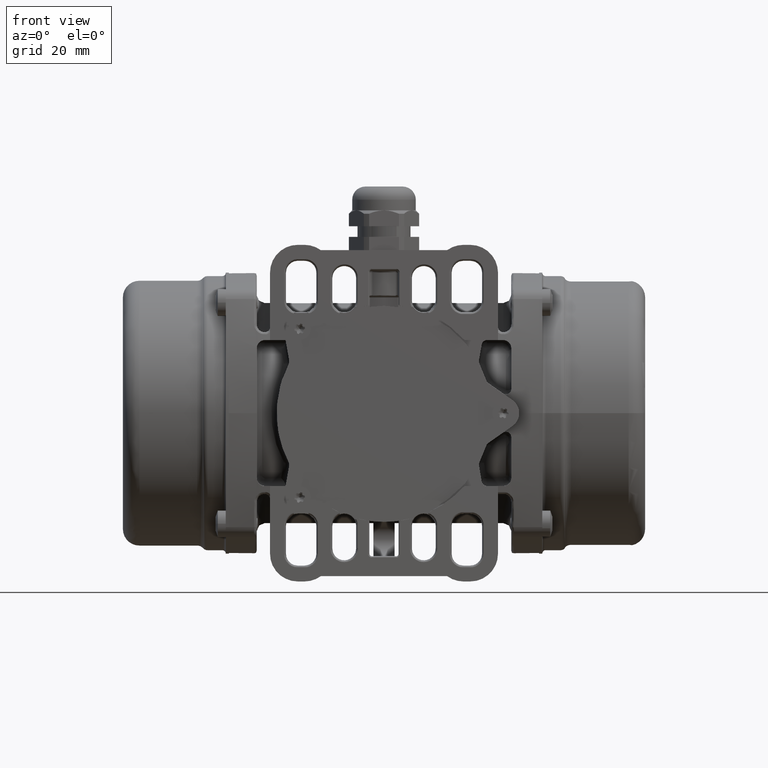
[diagram: clean part render]
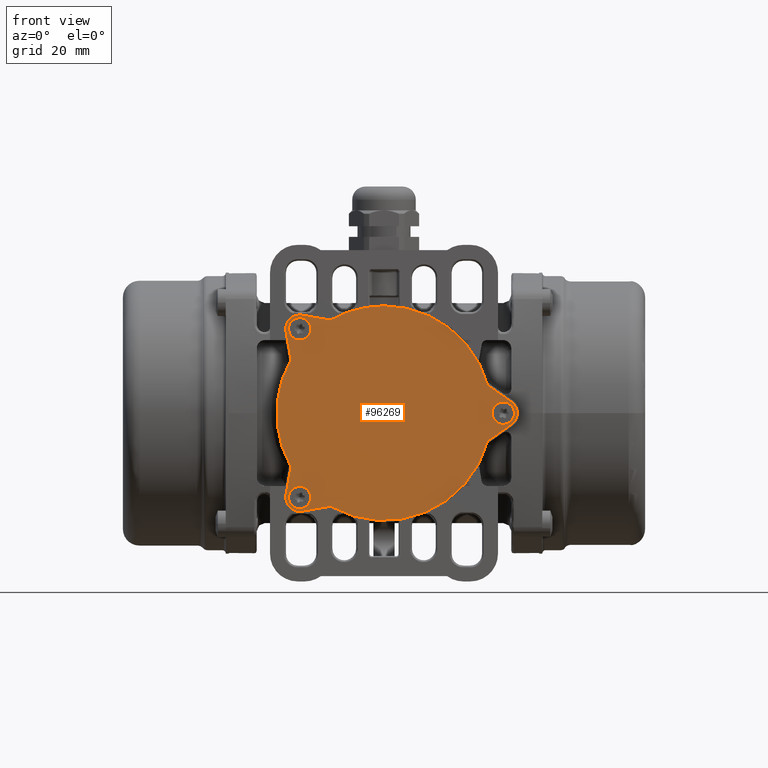
[diagram: same view with one face highlighted and labeled with its STEP entity id]
A machine part, front view. The second image highlights one B-rep face of the part: STEP entity #96269.
In plain terms, the highlighted planar face has unit normal (-0, -1, 0).
Its self-contained STEP definition (entity closure, byte-faithful):
#966 = AXIS2_PLACEMENT_3D ( 'NONE', #69249, #107628, #12841 ) ;
#1050 = VERTEX_POINT ( 'NONE', #96091 ) ;
#2531 = DIRECTION ( 'NONE',  ( -1.237550740046069900E-016, -1.000000000000000000, 3.574525976782709700E-031 ) ) ;
#3056 = CARTESIAN_POINT ( 'NONE',  ( -36.99004585670845600, -68.00000000000000000, 30.90815222064355100 ) ) ;
#4273 = CARTESIAN_POINT ( 'NONE',  ( 45.00000000000000000, -68.00000000000000000, -5.308253836489029700E-015 ) ) ;
#4296 = CARTESIAN_POINT ( 'NONE',  ( 39.10539446860369800, -68.00000000000000000, 10.53651381885390000 ) ) ;
#4712 = VERTEX_POINT ( 'NONE', #32330 ) ;
#6542 = DIRECTION ( 'NONE',  ( -1.237550740046069900E-016, -1.000000000000000000, 3.574525976782709700E-031 ) ) ;
#6832 = EDGE_CURVE ( 'NONE', #85620, #96182, #25544, .T. ) ;
#7958 = CIRCLE ( 'NONE', #106075, 40.50000000000000000 ) ;
#8551 = CARTESIAN_POINT ( 'NONE',  ( -31.81980515339480300, -68.00000000000000000, -35.31980515339449800 ) ) ;
#8789 = VECTOR ( 'NONE', #65992, 1000.000000000000000 ) ;
#9690 = VERTEX_POINT ( 'NONE', #19302 ) ;
#10546 = DIRECTION ( 'NONE',  ( -1.214306433183763700E-016, 0.0000000000000000000, -1.000000000000000000 ) ) ;
#10735 = DIRECTION ( 'NONE',  ( -1.237550740046069900E-016, -1.000000000000000000, 3.574525976782709700E-031 ) ) ;
#10797 = VERTEX_POINT ( 'NONE', #8551 ) ;
#10888 = CIRCLE ( 'NONE', #72010, 3.500000000000000000 ) ;
#12333 = CIRCLE ( 'NONE', #966, 3.500000000000003100 ) ;
#12582 = CIRCLE ( 'NONE', #83878, 5.250000000000000900 ) ;
#12841 = DIRECTION ( 'NONE',  ( 0.0000000000000000000, 0.0000000000000000000, -1.000000000000000000 ) ) ;
#12865 = VECTOR ( 'NONE', #86376, 999.9999999999998900 ) ;
#13511 = DIRECTION ( 'NONE',  ( -0.8191520442889946900, 1.013742218620097500E-016, 0.5735764363510417200 ) ) ;
#14303 = FACE_OUTER_BOUND ( 'NONE', #118329, .T. ) ;
#14842 = ORIENTED_EDGE ( 'NONE', *, *, #107630, .T. ) ;
#14923 = CARTESIAN_POINT ( 'NONE',  ( -31.81980515339480300, -68.00000000000000000, -28.31980515339449800 ) ) ;
#15842 = DIRECTION ( 'NONE',  ( -0.1736481776669259700, 2.148984307793519300E-017, -0.9848077530122089100 ) ) ;
#15980 = CARTESIAN_POINT ( 'NONE',  ( -2.475101480092139800E-016, -68.00000000000000000, 7.675673422733809500E-031 ) ) ;
#16080 = CARTESIAN_POINT ( 'NONE',  ( 4.794185980389637200E-015, -68.00000000000000000, 40.50000000000000000 ) ) ;
#16229 = CARTESIAN_POINT ( 'NONE',  ( -2.475101480092139800E-016, -68.00000000000000000, 7.675673422733809500E-031 ) ) ;
#16535 = VERTEX_POINT ( 'NONE', #79624 ) ;
#16637 = ORIENTED_EDGE ( 'NONE', *, *, #54717, .T. ) ;
#16880 = VERTEX_POINT ( 'NONE', #74575 ) ;
#18156 = DIRECTION ( 'NONE',  ( 0.0000000000000000000, 0.0000000000000000000, -1.000000000000000000 ) ) ;
#18770 = LINE ( 'NONE', #95905, #12865 ) ;
#19302 = CARTESIAN_POINT ( 'NONE',  ( -36.99004585670845600, -68.00000000000000000, 30.90815222064355100 ) ) ;
#19938 = AXIS2_PLACEMENT_3D ( 'NONE', #15980, #81875, #118200 ) ;
#20229 = DIRECTION ( 'NONE',  ( -1.214306433183763700E-016, 0.0000000000000000000, -1.000000000000000000 ) ) ;
#21289 = CARTESIAN_POINT ( 'NONE',  ( 45.00000000000000000, -68.00000000000000000, -3.500000000000005300 ) ) ;
#21374 = ORIENTED_EDGE ( 'NONE', *, *, #87114, .F. ) ;
#22426 = CARTESIAN_POINT ( 'NONE',  ( -31.81980515339435200, -68.00000000000000000, 37.06980515339489600 ) ) ;
#23216 = DIRECTION ( 'NONE',  ( -1.237550740046069900E-016, -1.000000000000000000, 3.574525976782709700E-031 ) ) ;
#23366 = DIRECTION ( 'NONE',  ( -1.237550740046069900E-016, -1.000000000000000000, 3.724802559285636700E-031 ) ) ;
#23871 = CIRCLE ( 'NONE', #51540, 5.250000000000000900 ) ;
#25544 = LINE ( 'NONE', #107960, #115504 ) ;
#27044 = EDGE_CURVE ( 'NONE', #29166, #111359, #10888, .T. ) ;
#27130 = CIRCLE ( 'NONE', #19938, 40.50000000000000000 ) ;
#28363 = CARTESIAN_POINT ( 'NONE',  ( -31.81980515339435200, -68.00000000000000000, 31.81980515339489900 ) ) ;
#29166 = VERTEX_POINT ( 'NONE', #39526 ) ;
#31339 = DIRECTION ( 'NONE',  ( 0.8191520442889862500, -1.013742218620082300E-016, 0.5735764363510540400 ) ) ;
#32330 = CARTESIAN_POINT ( 'NONE',  ( -20.20124923834669800, -68.00000000000000000, 35.10212998110225200 ) ) ;
#32830 = DIRECTION ( 'NONE',  ( -1.214306433183763700E-016, -3.574525976782709700E-031, -1.000000000000000000 ) ) ;
#34153 = VERTEX_POINT ( 'NONE', #22426 ) ;
#34246 = VERTEX_POINT ( 'NONE', #95212 ) ;
#36131 = LINE ( 'NONE', #88479, #59689 ) ;
#36242 = DIRECTION ( 'NONE',  ( -0.7071067811865541200, 0.0000000000000000000, -0.7071067811865409100 ) ) ;
#36335 = ORIENTED_EDGE ( 'NONE', *, *, #44524, .T. ) ;
#38043 = EDGE_CURVE ( 'NONE', #34153, #9690, #116533, .T. ) ;
#39526 = CARTESIAN_POINT ( 'NONE',  ( 45.00000000000000000, -68.00000000000000000, 3.499999999999994700 ) ) ;
#40027 = AXIS2_PLACEMENT_3D ( 'NONE', #47407, #56518, #20229 ) ;
#40945 = DIRECTION ( 'NONE',  ( 0.0000000000000000000, 0.0000000000000000000, -1.000000000000000000 ) ) ;
#41490 = PLANE ( 'NONE',  #61131 ) ;
#42309 = FACE_BOUND ( 'NONE', #64689, .T. ) ;
#43717 = ORIENTED_EDGE ( 'NONE', *, *, #60414, .T. ) ;
#44513 = VERTEX_POINT ( 'NONE', #114294 ) ;
#44524 = EDGE_CURVE ( 'NONE', #9690, #44513, #65401, .T. ) ;
#45990 = CARTESIAN_POINT ( 'NONE',  ( -31.81980515339435200, -68.00000000000000000, 35.31980515339490300 ) ) ;
#46084 = CARTESIAN_POINT ( 'NONE',  ( 48.01127629084300000, -68.00000000000000000, -4.300548232517186000 ) ) ;
#46262 = CIRCLE ( 'NONE', #110750, 3.499999999999999600 ) ;
#46406 = VERTEX_POINT ( 'NONE', #14923 ) ;
#46800 = CARTESIAN_POINT ( 'NONE',  ( -31.81980515339435200, -68.00000000000000000, 31.81980515339489900 ) ) ;
#47407 = CARTESIAN_POINT ( 'NONE',  ( -2.475101480092139800E-016, -68.00000000000000000, 7.675673422733809500E-031 ) ) ;
#47831 = DIRECTION ( 'NONE',  ( 0.0000000000000000000, 0.0000000000000000000, -1.000000000000000000 ) ) ;
#50052 = DIRECTION ( 'NONE',  ( 0.7071067811865435800, 0.0000000000000000000, -0.7071067811865514600 ) ) ;
#50772 = ORIENTED_EDGE ( 'NONE', *, *, #108506, .F. ) ;
#51540 = AXIS2_PLACEMENT_3D ( 'NONE', #105278, #95362, #50052 ) ;
#51966 = CIRCLE ( 'NONE', #80608, 3.500000000000003100 ) ;
#51970 = ORIENTED_EDGE ( 'NONE', *, *, #104941, .T. ) ;
#53559 = CARTESIAN_POINT ( 'NONE',  ( -31.81980515339480300, -68.00000000000000000, -31.81980515339449800 ) ) ;
#53755 = DIRECTION ( 'NONE',  ( -1.237550740046069900E-016, -1.000000000000000000, 3.574525976782709700E-031 ) ) ;
#54717 = EDGE_CURVE ( 'NONE', #16880, #1050, #23871, .T. ) ;
#56037 = CIRCLE ( 'NONE', #75619, 3.500000000000000000 ) ;
#56518 = DIRECTION ( 'NONE',  ( -1.237550740046069900E-016, -1.000000000000000000, 3.574525976782709700E-031 ) ) ;
#56568 = AXIS2_PLACEMENT_3D ( 'NONE', #67185, #10735, #96466 ) ;
#57155 = DIRECTION ( 'NONE',  ( -1.237550740046069900E-016, -1.000000000000000000, 3.574525976782709700E-031 ) ) ;
#58990 = CARTESIAN_POINT ( 'NONE',  ( -31.81980515339435200, -68.00000000000000000, 31.81980515339489900 ) ) ;
#59689 = VECTOR ( 'NONE', #13511, 1000.000000000000100 ) ;
#60315 = DIRECTION ( 'NONE',  ( -0.7071067811865541200, 0.0000000000000000000, -0.7071067811865409100 ) ) ;
#60414 = EDGE_CURVE ( 'NONE', #96182, #34246, #102031, .T. ) ;
#61131 = AXIS2_PLACEMENT_3D ( 'NONE', #116926, #23366, #32830 ) ;
#62899 = EDGE_CURVE ( 'NONE', #111359, #29166, #56037, .T. ) ;
#64689 = EDGE_LOOP ( 'NONE', ( #116279, #86269 ) ) ;
#65103 = DIRECTION ( 'NONE',  ( -1.237550740046069900E-016, -1.000000000000000000, 3.574525976782709700E-031 ) ) ;
#65228 = ORIENTED_EDGE ( 'NONE', *, *, #81915, .T. ) ;
#65401 = LINE ( 'NONE', #3056, #69895 ) ;
#65992 = DIRECTION ( 'NONE',  ( -0.9848077530122082400, 1.218749563543364100E-016, 0.1736481776669295300 ) ) ;
#66627 = VERTEX_POINT ( 'NONE', #4296 ) ;
#67185 = CARTESIAN_POINT ( 'NONE',  ( 45.00000000000000000, -68.00000000000000000, -5.308253836489029700E-015 ) ) ;
#68931 = DIRECTION ( 'NONE',  ( -1.237550740046069900E-016, -1.000000000000000000, 3.574525976782709700E-031 ) ) ;
#69067 = AXIS2_PLACEMENT_3D ( 'NONE', #104950, #57155, #10546 ) ;
#69249 = CARTESIAN_POINT ( 'NONE',  ( -31.81980515339480300, -68.00000000000000000, -31.81980515339449800 ) ) ;
#69524 = ORIENTED_EDGE ( 'NONE', *, *, #108136, .F. ) ;
#69895 = VECTOR ( 'NONE', #117970, 999.9999999999998900 ) ;
#70761 = LINE ( 'NONE', #113392, #8789 ) ;
#72010 = AXIS2_PLACEMENT_3D ( 'NONE', #93929, #65103, #18156 ) ;
#72414 = ORIENTED_EDGE ( 'NONE', *, *, #108334, .T. ) ;
#73258 = FACE_BOUND ( 'NONE', #107412, .T. ) ;
#73461 = CARTESIAN_POINT ( 'NONE',  ( -36.99004585670890300, -68.00000000000000000, -30.90815222064310000 ) ) ;
#74575 = CARTESIAN_POINT ( 'NONE',  ( -36.99004585670890300, -68.00000000000000000, -30.90815222064310000 ) ) ;
#74704 = VECTOR ( 'NONE', #15842, 999.9999999999998900 ) ;
#75559 = VERTEX_POINT ( 'NONE', #16080 ) ;
#75602 = DIRECTION ( 'NONE',  ( 0.0000000000000000000, 0.0000000000000000000, -1.000000000000000000 ) ) ;
#75619 = AXIS2_PLACEMENT_3D ( 'NONE', #4273, #23216, #40945 ) ;
#77584 = CIRCLE ( 'NONE', #69067, 40.50000000000000000 ) ;
#79624 = CARTESIAN_POINT ( 'NONE',  ( -35.10212998110220200, -68.00000000000000000, -20.20124923834679700 ) ) ;
#80381 = ORIENTED_EDGE ( 'NONE', *, *, #110911, .T. ) ;
#80608 = AXIS2_PLACEMENT_3D ( 'NONE', #53559, #6542, #81930 ) ;
#80653 = EDGE_CURVE ( 'NONE', #1050, #109831, #18770, .T. ) ;
#81875 = DIRECTION ( 'NONE',  ( -1.237550740046069900E-016, -1.000000000000000000, 3.574525976782709700E-031 ) ) ;
#81915 = EDGE_CURVE ( 'NONE', #44513, #16535, #77584, .T. ) ;
#81930 = DIRECTION ( 'NONE',  ( 0.0000000000000000000, 0.0000000000000000000, -1.000000000000000000 ) ) ;
#83199 = CARTESIAN_POINT ( 'NONE',  ( -31.81980515339435200, -68.00000000000000000, 28.31980515339490300 ) ) ;
#83218 = CIRCLE ( 'NONE', #91466, 3.499999999999999600 ) ;
#83878 = AXIS2_PLACEMENT_3D ( 'NONE', #28363, #83988, #36242 ) ;
#83988 = DIRECTION ( 'NONE',  ( -1.237550740046069900E-016, -1.000000000000000000, 3.574525976782709700E-031 ) ) ;
#84206 = EDGE_CURVE ( 'NONE', #109831, #85620, #104968, .T. ) ;
#84994 = LINE ( 'NONE', #73461, #74704 ) ;
#85620 = VERTEX_POINT ( 'NONE', #112316 ) ;
#86269 = ORIENTED_EDGE ( 'NONE', *, *, #27044, .F. ) ;
#86376 = DIRECTION ( 'NONE',  ( 0.9848077530122081300, -1.218749563543361900E-016, 0.1736481776669305300 ) ) ;
#87114 = EDGE_CURVE ( 'NONE', #114620, #106521, #83218, .T. ) ;
#88479 = CARTESIAN_POINT ( 'NONE',  ( 48.01127629084300000, -68.00000000000000000, 4.300548232517220600 ) ) ;
#89673 = ORIENTED_EDGE ( 'NONE', *, *, #80653, .T. ) ;
#90684 = EDGE_CURVE ( 'NONE', #46406, #10797, #51966, .T. ) ;
#91440 = VERTEX_POINT ( 'NONE', #96119 ) ;
#91466 = AXIS2_PLACEMENT_3D ( 'NONE', #58990, #2531, #47831 ) ;
#93929 = CARTESIAN_POINT ( 'NONE',  ( 45.00000000000000000, -68.00000000000000000, -5.308253836489029700E-015 ) ) ;
#95212 = CARTESIAN_POINT ( 'NONE',  ( 48.01127629084300000, -68.00000000000000000, 4.300548232517220600 ) ) ;
#95362 = DIRECTION ( 'NONE',  ( -1.237550740046069900E-016, -1.000000000000000000, 3.574525976782709700E-031 ) ) ;
#95523 = ORIENTED_EDGE ( 'NONE', *, *, #6832, .T. ) ;
#95905 = CARTESIAN_POINT ( 'NONE',  ( -30.90815222064340200, -68.00000000000000000, -36.99004585670854800 ) ) ;
#96091 = CARTESIAN_POINT ( 'NONE',  ( -30.90815222064340200, -68.00000000000000000, -36.99004585670854800 ) ) ;
#96119 = CARTESIAN_POINT ( 'NONE',  ( -30.90815222064300000, -68.00000000000000000, 36.99004585670900300 ) ) ;
#96182 = VERTEX_POINT ( 'NONE', #46084 ) ;
#96269 = ADVANCED_FACE ( 'NONE', ( #96813, #73258, #14303, #42309 ), #41490, .T. ) ;
#96466 = DIRECTION ( 'NONE',  ( 0.0000000000000000000, 0.0000000000000000000, 1.000000000000000000 ) ) ;
#96813 = FACE_BOUND ( 'NONE', #120647, .T. ) ;
#102031 = CIRCLE ( 'NONE', #56568, 5.250000000000000000 ) ;
#103116 = ORIENTED_EDGE ( 'NONE', *, *, #90684, .F. ) ;
#104941 = EDGE_CURVE ( 'NONE', #16535, #16880, #84994, .T. ) ;
#104950 = CARTESIAN_POINT ( 'NONE',  ( -2.475101480092139800E-016, -68.00000000000000000, 7.675673422733809500E-031 ) ) ;
#104968 = CIRCLE ( 'NONE', #40027, 40.50000000000000000 ) ;
#105278 = CARTESIAN_POINT ( 'NONE',  ( -31.81980515339480300, -68.00000000000000000, -31.81980515339449800 ) ) ;
#106075 = AXIS2_PLACEMENT_3D ( 'NONE', #16229, #53755, #120066 ) ;
#106521 = VERTEX_POINT ( 'NONE', #83199 ) ;
#106552 = EDGE_CURVE ( 'NONE', #91440, #34153, #12582, .T. ) ;
#107295 = CARTESIAN_POINT ( 'NONE',  ( -31.81980515339435200, -68.00000000000000000, 31.81980515339489900 ) ) ;
#107412 = EDGE_LOOP ( 'NONE', ( #50772, #103116 ) ) ;
#107628 = DIRECTION ( 'NONE',  ( -1.237550740046069900E-016, -1.000000000000000000, 3.574525976782709700E-031 ) ) ;
#107630 = EDGE_CURVE ( 'NONE', #34246, #66627, #36131, .T. ) ;
#107772 = ORIENTED_EDGE ( 'NONE', *, *, #108068, .T. ) ;
#107960 = CARTESIAN_POINT ( 'NONE',  ( 48.01127629084300000, -68.00000000000000000, -4.300548232517186000 ) ) ;
#108068 = EDGE_CURVE ( 'NONE', #75559, #4712, #27130, .T. ) ;
#108136 = EDGE_CURVE ( 'NONE', #106521, #114620, #46262, .T. ) ;
#108334 = EDGE_CURVE ( 'NONE', #66627, #75559, #7958, .T. ) ;
#108506 = EDGE_CURVE ( 'NONE', #10797, #46406, #12333, .T. ) ;
#108967 = ORIENTED_EDGE ( 'NONE', *, *, #84206, .T. ) ;
#109831 = VERTEX_POINT ( 'NONE', #115915 ) ;
#110466 = ORIENTED_EDGE ( 'NONE', *, *, #106552, .T. ) ;
#110750 = AXIS2_PLACEMENT_3D ( 'NONE', #46800, #113534, #75602 ) ;
#110911 = EDGE_CURVE ( 'NONE', #4712, #91440, #70761, .T. ) ;
#111359 = VERTEX_POINT ( 'NONE', #21289 ) ;
#112316 = CARTESIAN_POINT ( 'NONE',  ( 39.10539446860364900, -68.00000000000000000, -10.53651381885416100 ) ) ;
#113392 = CARTESIAN_POINT ( 'NONE',  ( -30.90815222064300000, -68.00000000000000000, 36.99004585670900300 ) ) ;
#113534 = DIRECTION ( 'NONE',  ( -1.237550740046069900E-016, -1.000000000000000000, 3.574525976782709700E-031 ) ) ;
#114294 = CARTESIAN_POINT ( 'NONE',  ( -35.10212998110175400, -68.00000000000000000, 20.20124923834754700 ) ) ;
#114620 = VERTEX_POINT ( 'NONE', #45990 ) ;
#115504 = VECTOR ( 'NONE', #31339, 1000.000000000000100 ) ;
#115915 = CARTESIAN_POINT ( 'NONE',  ( -20.20124923834739800, -68.00000000000000000, -35.10212998110184700 ) ) ;
#116279 = ORIENTED_EDGE ( 'NONE', *, *, #62899, .F. ) ;
#116533 = CIRCLE ( 'NONE', #117774, 5.250000000000000900 ) ;
#116926 = CARTESIAN_POINT ( 'NONE',  ( -2.475101480092139800E-016, -68.00000000000000000, 7.675673422733809500E-031 ) ) ;
#117774 = AXIS2_PLACEMENT_3D ( 'NONE', #107295, #68931, #60315 ) ;
#117970 = DIRECTION ( 'NONE',  ( 0.1736481776669274200, -2.148984307793608900E-017, -0.9848077530122086900 ) ) ;
#118200 = DIRECTION ( 'NONE',  ( -1.214306433183763700E-016, 0.0000000000000000000, -1.000000000000000000 ) ) ;
#118329 = EDGE_LOOP ( 'NONE', ( #72414, #107772, #80381, #110466, #120750, #36335, #65228, #51970, #16637, #89673, #108967, #95523, #43717, #14842 ) ) ;
#120066 = DIRECTION ( 'NONE',  ( -1.214306433183763700E-016, 0.0000000000000000000, -1.000000000000000000 ) ) ;
#120647 = EDGE_LOOP ( 'NONE', ( #69524, #21374 ) ) ;
#120750 = ORIENTED_EDGE ( 'NONE', *, *, #38043, .T. ) ;